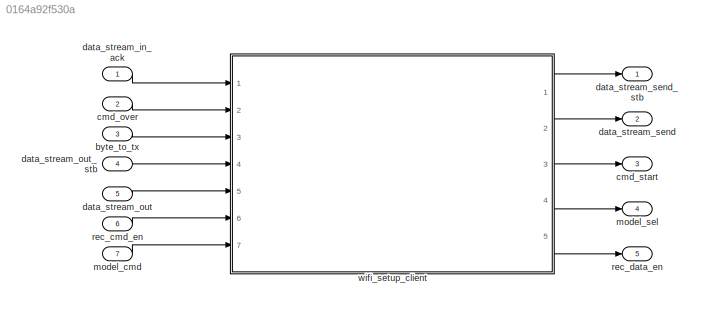
MODEL slx_0164a92f530a
KIND model
CONFIG AbsTol = auto
CONFIG FixedStep = auto
CONFIG MaxStep = auto
CONFIG MinStep = auto
CONFIG RelTol = 1e-3
CONFIG SampleTimeConstraint = Unconstrained
CONFIG Solver = VariableStepAuto
CONFIG SolverMode = Auto
CONFIG SolverName = VariableStepAuto
CONFIG StartTime = 0.0
CONFIG StopTime = 10.0
BLOCK [Inport] byte_to_tx
  IconDisplay = Port number
  Port = 3
  SampleTime = 0
BLOCK [Inport] cmd_over
  IconDisplay = Port number
  Port = 2
  SampleTime = 0
BLOCK [Outport] cmd_start
  IconDisplay = Port number
  Port = 3
BLOCK [Inport] data_stream_in_ack
  IconDisplay = Port number
  SampleTime = 0
BLOCK [Inport] data_stream_out
  IconDisplay = Port number
  Port = 5
  SampleTime = 0
BLOCK [Inport] data_stream_out_stb
  IconDisplay = Port number
  Port = 4
  SampleTime = 0
BLOCK [Outport] data_stream_send
  IconDisplay = Port number
  Port = 2
BLOCK [Outport] data_stream_send_stb
  IconDisplay = Port number
BLOCK [Inport] model_cmd
  IconDisplay = Port number
  Port = 7
  SampleTime = 0
BLOCK [Outport] model_sel
  IconDisplay = Port number
  Port = 4
BLOCK [Inport] rec_cmd_en
  IconDisplay = Port number
  Port = 6
  SampleTime = 0
BLOCK [Outport] rec_data_en
  IconDisplay = Port number
  Port = 5
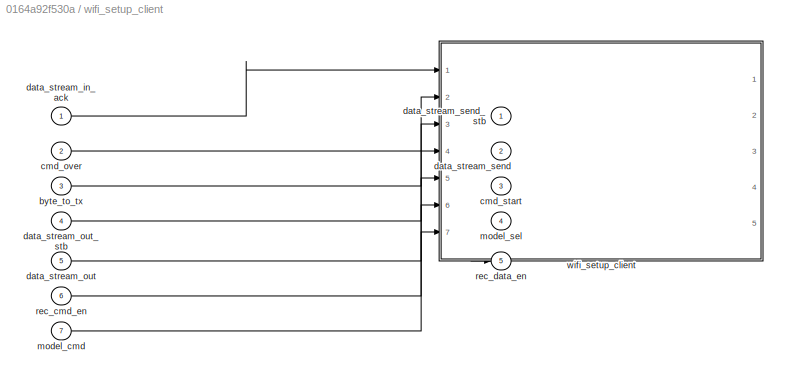
BLOCK [SubSystem] wifi_setup_client 
  Ports = [7, 5]
  RequestExecContextInheritance = off
  Variant = off
BLOCK [Inport] wifi_setup_client /byte_to_tx
  IconDisplay = Port number
  Port = 3
  SampleTime = 0
BLOCK [Inport] wifi_setup_client /cmd_over
  IconDisplay = Port number
  Port = 2
  SampleTime = 0
BLOCK [Outport] wifi_setup_client /cmd_start
  IconDisplay = Port number
  Port = 3
BLOCK [Inport] wifi_setup_client /data_stream_in_ack
  IconDisplay = Port number
  SampleTime = 0
BLOCK [Inport] wifi_setup_client /data_stream_out
  IconDisplay = Port number
  Port = 5
  SampleTime = 0
BLOCK [Inport] wifi_setup_client /data_stream_out_stb
  IconDisplay = Port number
  Port = 4
  SampleTime = 0
BLOCK [Outport] wifi_setup_client /data_stream_send
  IconDisplay = Port number
  Port = 2
BLOCK [Outport] wifi_setup_client /data_stream_send_stb
  IconDisplay = Port number
BLOCK [Inport] wifi_setup_client /model_cmd
  IconDisplay = Port number
  Port = 7
  SampleTime = 0
BLOCK [Outport] wifi_setup_client /model_sel
  IconDisplay = Port number
  Port = 4
BLOCK [Inport] wifi_setup_client /rec_cmd_en
  IconDisplay = Port number
  Port = 6
  SampleTime = 0
BLOCK [Outport] wifi_setup_client /rec_data_en
  IconDisplay = Port number
  Port = 5
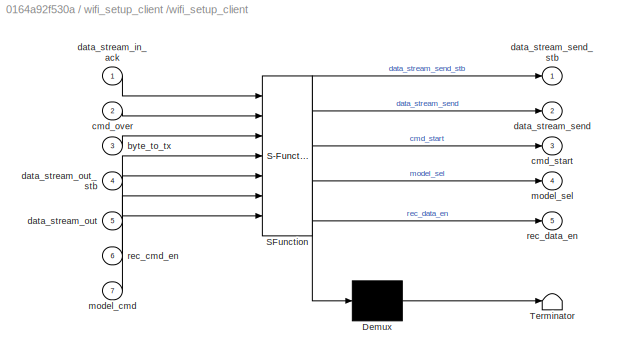
BLOCK [SubSystem] wifi_setup_client /wifi_setup_client 
  ErrorFcn = Stateflow.Translate.translate
  PermitHierarchicalResolution = ExplicitOnly
  Ports = [7, 5]
  RequestExecContextInheritance = off
  SFBlockType = Chart
  TreatAsAtomicUnit = on
  Variant = off
BLOCK [Demux] wifi_setup_client /wifi_setup_client / Demux 
  Outputs = 1
  Ports = [1, 1]
BLOCK [S-Function] wifi_setup_client /wifi_setup_client / SFunction 
  EnableBusSupport = on
  FunctionName = sf_sfun
  PortCounts = [7 6]
  Ports = [7, 6]
  SFunctionDeploymentMode = off
  Tag = Stateflow S-Function gm_ESP8266_Config 3
BLOCK [Terminator] wifi_setup_client /wifi_setup_client / Terminator 
BLOCK [Inport] wifi_setup_client /wifi_setup_client /byte_to_tx
  IconDisplay = Port number
  Port = 3
BLOCK [Inport] wifi_setup_client /wifi_setup_client /cmd_over
  IconDisplay = Port number
  Port = 2
BLOCK [Outport] wifi_setup_client /wifi_setup_client /cmd_start
  IconDisplay = Port number
  Port = 3
BLOCK [Inport] wifi_setup_client /wifi_setup_client /data_stream_in_ack
  IconDisplay = Port number
BLOCK [Inport] wifi_setup_client /wifi_setup_client /data_stream_out
  IconDisplay = Port number
  Port = 5
BLOCK [Inport] wifi_setup_client /wifi_setup_client /data_stream_out_stb
  IconDisplay = Port number
  Port = 4
BLOCK [Outport] wifi_setup_client /wifi_setup_client /data_stream_send
  IconDisplay = Port number
  Port = 2
BLOCK [Outport] wifi_setup_client /wifi_setup_client /data_stream_send_stb
  IconDisplay = Port number
BLOCK [Inport] wifi_setup_client /wifi_setup_client /model_cmd
  IconDisplay = Port number
  Port = 7
BLOCK [Outport] wifi_setup_client /wifi_setup_client /model_sel
  IconDisplay = Port number
  Port = 4
BLOCK [Inport] wifi_setup_client /wifi_setup_client /rec_cmd_en
  IconDisplay = Port number
  Port = 6
BLOCK [Outport] wifi_setup_client /wifi_setup_client /rec_data_en
  IconDisplay = Port number
  Port = 5
LINE byte_to_tx:1 -> wifi_setup_client :3
LINE cmd_over:1 -> wifi_setup_client :2
LINE data_stream_in_ack:1 -> wifi_setup_client :1
LINE data_stream_out:1 -> wifi_setup_client :5
LINE data_stream_out_stb:1 -> wifi_setup_client :4
LINE model_cmd:1 -> wifi_setup_client :7
LINE rec_cmd_en:1 -> wifi_setup_client :6
LINE wifi_setup_client /byte_to_tx:1 -> wifi_setup_client /wifi_setup_client :3
LINE wifi_setup_client /cmd_over:1 -> wifi_setup_client /wifi_setup_client :2
LINE wifi_setup_client /data_stream_in_ack:1 -> wifi_setup_client /wifi_setup_client :1
LINE wifi_setup_client /data_stream_out:1 -> wifi_setup_client /wifi_setup_client :5
LINE wifi_setup_client /data_stream_out_stb:1 -> wifi_setup_client /wifi_setup_client :4
LINE wifi_setup_client /model_cmd:1 -> wifi_setup_client /wifi_setup_client :7
LINE wifi_setup_client /rec_cmd_en:1 -> wifi_setup_client /wifi_setup_client :6
LINE wifi_setup_client /wifi_setup_client :1 -> wifi_setup_client /data_stream_send_stb:1
LINE wifi_setup_client /wifi_setup_client :2 -> wifi_setup_client /data_stream_send:1
LINE wifi_setup_client /wifi_setup_client :3 -> wifi_setup_client /cmd_start:1
LINE wifi_setup_client /wifi_setup_client :4 -> wifi_setup_client /model_sel:1
LINE wifi_setup_client /wifi_setup_client :5 -> wifi_setup_client /rec_data_en:1
LINE wifi_setup_client :1 -> data_stream_send_stb:1
LINE wifi_setup_client :2 -> data_stream_send:1
LINE wifi_setup_client :3 -> cmd_start:1
LINE wifi_setup_client :4 -> model_sel:1
LINE wifi_setup_client :5 -> rec_data_en:1
CHART wifi_setup_client /wifi_setup_client  states=16 transitions=46
  STATE_LABEL 'initial\nentry:\ndata_stream_send_stb=0;\ndata_stream_send=0;\ncmd_start=0;\nrec_data_en=0;\nmodel_sel=0;\ncnt_wait=0;\ncnt_halt=0;'
  STATE_LABEL 'Tran_Enter_1\nentry: data_stream_send_stb=1;\n data_stream_send=10;%/n'
  STATE_LABEL 'Tran_T\nentry: data_stream_send_stb=1;\n data_stream_send=84;%T'
  STATE_LABEL 'Tran_Enter\nentry: data_stream_send_stb=1;\n data_stream_send=13;%/r'
  STATE_LABEL 'Tran_A\nentry: data_stream_send_stb=1;\n data_stream_send=65;%A\n'
  STATE_LABEL 'send_finish\nentry: data_stream_send_stb=0;\n data_stream_send=0;'
  STATE_LABEL 'wait_cnt1\nentry: cnt_wait=cnt_wait+1;\n'
  STATE_LABEL 'wait_cmd\nentry: cmd_start=1;\n data_stream_send_stb=1;\n data_stream_send=byte_to_tx;'
  STATE_LABEL 'send_cmd1\nentry: cmd_start=1;\n data_stream_send_stb=0;\n data_stream_send=byte_to_tx;'
  STATE_LABEL 'send_cmd2\nentry: cmd_start=1;\n data_stream_send_stb=1;\n data_stream_send=byte_to_tx;'
  STATE_LABEL 'device_OK\nentry: model_sel=model_sel+1;\n'
  STATE_LABEL 'send_cmd_over\nentry: cmd_start=0;\n data_stream_send_stb=0;\n data_stream_send=0;'
  STATE_LABEL 'Tran1_Enter\nentry: data_stream_send_stb=1;\n data_stream_send=13;%/r'
  STATE_LABEL 'Tran1_Enter_1\nentry: data_stream_send_stb=1;\n data_stream_send=10;%/n'
  STATE_LABEL 'send_finish1\nentry: data_stream_send_stb=0;\n data_stream_send=0;'
  STATE_LABEL 'device_config_OK\nentry: model_sel=7;'
